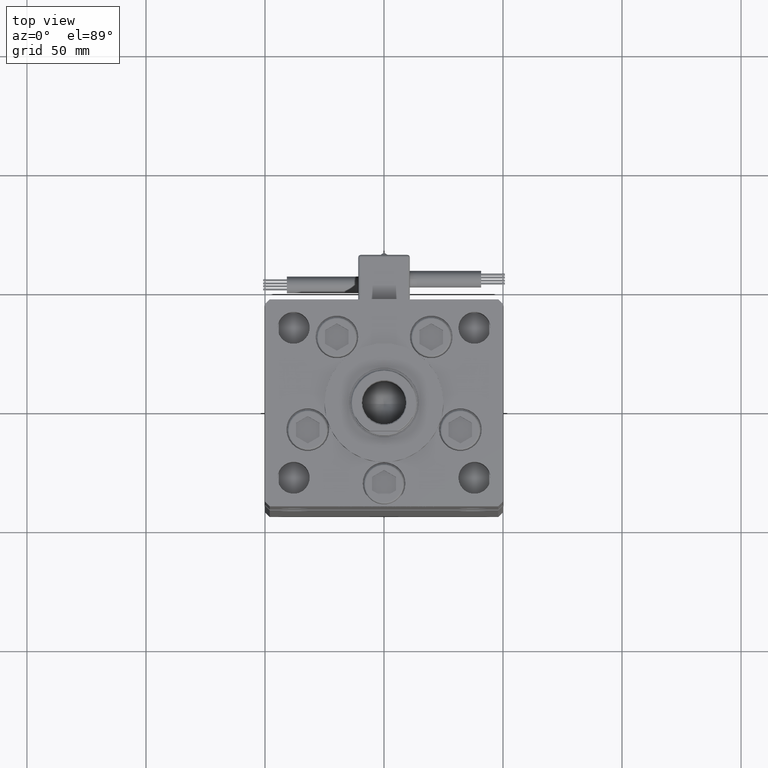
[diagram: clean part render]
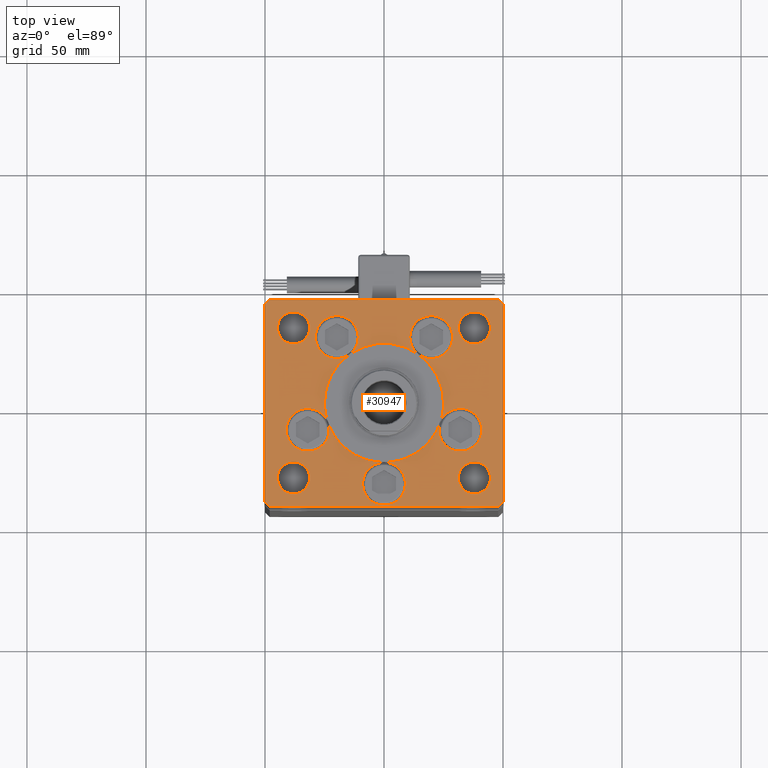
[diagram: same view with one face highlighted and labeled with its STEP entity id]
A machine part, top view. The second image highlights one B-rep face of the part: STEP entity #30947.
In plain terms, the highlighted planar face has unit normal (0, 0, 1).
Its self-contained STEP definition (entity closure, byte-faithful):
#371 = VERTEX_POINT ( 'NONE', #44203 ) ;
#615 = CARTESIAN_POINT ( 'NONE',  ( 23.05550741379015633, -11.33333333333332682, 0.000000000000000000 ) ) ;
#645 = EDGE_CURVE ( 'NONE', #3969, #31298, #35624, .T. ) ;
#651 = EDGE_CURVE ( 'NONE', #31397, #3433, #12047, .T. ) ;
#709 = LINE ( 'NONE', #18044, #14756 ) ;
#761 = VERTEX_POINT ( 'NONE', #12591 ) ;
#779 = DIRECTION ( 'NONE',  ( 1.000000000000000000, 0.000000000000000000, 0.000000000000000000 ) ) ;
#847 = CIRCLE ( 'NONE', #32631, 9.000000000000001776 ) ;
#994 = LINE ( 'NONE', #27676, #44138 ) ;
#1056 = CARTESIAN_POINT ( 'NONE',  ( 19.82068048781374969, 27.62499999999998934, 0.000000000000000000 ) ) ;
#1310 = CARTESIAN_POINT ( 'NONE',  ( 0.000000000000000000, -6.938893903907228378E-15, 0.000000000000000000 ) ) ;
#1465 = EDGE_CURVE ( 'NONE', #27745, #36570, #709, .T. ) ;
#1714 = DIRECTION ( 'NONE',  ( 0.000000000000000000, 0.000000000000000000, 1.000000000000000000 ) ) ;
#1786 = CIRCLE ( 'NONE', #16330, 8.999999999999998224 ) ;
#1943 = EDGE_LOOP ( 'NONE', ( #23618, #24441 ) ) ;
#2090 = ORIENTED_EDGE ( 'NONE', *, *, #32813, .F. ) ;
#2238 = DIRECTION ( 'NONE',  ( -0.7071067811865536790, -0.7071067811865414665, 0.000000000000000000 ) ) ;
#2425 = VERTEX_POINT ( 'NONE', #37733 ) ;
#2787 = CARTESIAN_POINT ( 'NONE',  ( 31.25000000000000000, 31.50000000000000000, 0.000000000000000000 ) ) ;
#2995 = AXIS2_PLACEMENT_3D ( 'NONE', #46728, #38751, #56091 ) ;
#3087 = CARTESIAN_POINT ( 'NONE',  ( 0.000000000000000000, -6.938893903907228378E-15, 0.000000000000000000 ) ) ;
#3433 = VERTEX_POINT ( 'NONE', #22454 ) ;
#3678 = CIRCLE ( 'NONE', #31840, 9.000000000000001776 ) ;
#3969 = VERTEX_POINT ( 'NONE', #14562 ) ;
#4075 = CIRCLE ( 'NONE', #35865, 25.00000000000000000 ) ;
#4206 = ORIENTED_EDGE ( 'NONE', *, *, #22791, .T. ) ;
#4477 = VERTEX_POINT ( 'NONE', #7303 ) ;
#4856 = CIRCLE ( 'NONE', #37539, 25.00000000000000000 ) ;
#4912 = CARTESIAN_POINT ( 'NONE',  ( 0.000000000000000000, -6.938893903907228378E-15, 0.000000000000000000 ) ) ;
#5049 = CARTESIAN_POINT ( 'NONE',  ( -32.05550741379015989, -11.33333333333332860, 0.000000000000000000 ) ) ;
#5074 = CIRCLE ( 'NONE', #36849, 9.000000000000000000 ) ;
#5149 = EDGE_CURVE ( 'NONE', #44443, #45075, #48487, .T. ) ;
#5286 = VERTEX_POINT ( 'NONE', #35778 ) ;
#5344 = CARTESIAN_POINT ( 'NONE',  ( -41.05550741379015989, -11.33333333333332682, 0.000000000000000000 ) ) ;
#5534 = DIRECTION ( 'NONE',  ( 0.000000000000000000, 0.000000000000000000, 1.000000000000000000 ) ) ;
#5781 = CIRCLE ( 'NONE', #37584, 9.000000000000000000 ) ;
#5864 = VERTEX_POINT ( 'NONE', #2787 ) ;
#5867 = DIRECTION ( 'NONE',  ( 8.360113137237620037E-17, -1.000000000000000000, 0.000000000000000000 ) ) ;
#6105 = CARTESIAN_POINT ( 'NONE',  ( -28.82068048781374969, 27.62499999999998934, 0.000000000000000000 ) ) ;
#6610 = ORIENTED_EDGE ( 'NONE', *, *, #7380, .F. ) ;
#6642 = CARTESIAN_POINT ( 'NONE',  ( 50.00000000000000000, -41.49999999999992895, 0.000000000000000000 ) ) ;
#6723 = CARTESIAN_POINT ( 'NONE',  ( 23.57022603955158502, -8.333333333333332149, 0.000000000000000000 ) ) ;
#6850 = DIRECTION ( 'NONE',  ( 0.000000000000000000, 0.000000000000000000, 1.000000000000000000 ) ) ;
#6890 = CARTESIAN_POINT ( 'NONE',  ( -32.05550741379015989, -11.33333333333332860, 0.000000000000000000 ) ) ;
#7279 = CIRCLE ( 'NONE', #10913, 25.00000000000000000 ) ;
#7303 = CARTESIAN_POINT ( 'NONE',  ( 14.57402977045128623, 20.31249999999998579, 0.000000000000000000 ) ) ;
#7380 = EDGE_CURVE ( 'NONE', #25454, #31397, #17548, .T. ) ;
#7423 = DIRECTION ( 'NONE',  ( 1.000000000000000000, 0.000000000000000000, 0.000000000000000000 ) ) ;
#7502 = DIRECTION ( 'NONE',  ( 0.7071067811865487940, -0.7071067811865463515, 0.000000000000000000 ) ) ;
#7625 = DIRECTION ( 'NONE',  ( 0.000000000000000000, 0.000000000000000000, 1.000000000000000000 ) ) ;
#7826 = LINE ( 'NONE', #11820, #20505 ) ;
#8149 = DIRECTION ( 'NONE',  ( 0.000000000000000000, 0.000000000000000000, 1.000000000000000000 ) ) ;
#8372 = DIRECTION ( 'NONE',  ( 1.000000000000000000, 0.000000000000000000, 0.000000000000000000 ) ) ;
#9052 = CIRCLE ( 'NONE', #49038, 8.999999999999998224 ) ;
#9323 = DIRECTION ( 'NONE',  ( 1.000000000000000000, 0.000000000000000000, 0.000000000000000000 ) ) ;
#9351 = FACE_BOUND ( 'NONE', #28870, .T. ) ;
#9603 = CARTESIAN_POINT ( 'NONE',  ( -19.82068048781374969, 27.62499999999998934, 0.000000000000000000 ) ) ;
#9637 = FACE_BOUND ( 'NONE', #53361, .T. ) ;
#9720 = AXIS2_PLACEMENT_3D ( 'NONE', #23103, #14301, #45564 ) ;
#9791 = CARTESIAN_POINT ( 'NONE',  ( 38.00000000000000000, 31.50000000000000000, 0.000000000000000000 ) ) ;
#9814 = ORIENTED_EDGE ( 'NONE', *, *, #44114, .F. ) ;
#10016 = CARTESIAN_POINT ( 'NONE',  ( -44.75000000000000000, 31.50000000000000000, 0.000000000000000000 ) ) ;
#10600 = AXIS2_PLACEMENT_3D ( 'NONE', #50693, #20249, #11720 ) ;
#10913 = AXIS2_PLACEMENT_3D ( 'NONE', #3087, #55124, #50581 ) ;
#10941 = VERTEX_POINT ( 'NONE', #6105 ) ;
#11049 = DIRECTION ( 'NONE',  ( 0.000000000000000000, 0.000000000000000000, 1.000000000000000000 ) ) ;
#11424 = CARTESIAN_POINT ( 'NONE',  ( 47.99999999999999289, 43.50000000000000000, 0.000000000000000000 ) ) ;
#11560 = AXIS2_PLACEMENT_3D ( 'NONE', #6890, #11722, #33059 ) ;
#11720 = DIRECTION ( 'NONE',  ( 1.000000000000000000, 0.000000000000000000, 0.000000000000000000 ) ) ;
#11722 = DIRECTION ( 'NONE',  ( 0.000000000000000000, 0.000000000000000000, 1.000000000000000000 ) ) ;
#11820 = CARTESIAN_POINT ( 'NONE',  ( 50.00000000000000000, 41.50000000000000711, 0.000000000000000000 ) ) ;
#12012 = ORIENTED_EDGE ( 'NONE', *, *, #25991, .T. ) ;
#12047 = CIRCLE ( 'NONE', #2995, 9.000000000000001776 ) ;
#12148 = EDGE_CURVE ( 'NONE', #5286, #25454, #4856, .T. ) ;
#12313 = CARTESIAN_POINT ( 'NONE',  ( 0.000000000000000000, -6.938893903907228378E-15, 0.000000000000000000 ) ) ;
#12591 = CARTESIAN_POINT ( 'NONE',  ( 9.000000000000000000, -34.00000000000000000, 0.000000000000000000 ) ) ;
#12796 = ORIENTED_EDGE ( 'NONE', *, *, #43658, .T. ) ;
#13077 = DIRECTION ( 'NONE',  ( 1.000000000000000000, 0.000000000000000000, 0.000000000000000000 ) ) ;
#13176 = ORIENTED_EDGE ( 'NONE', *, *, #55606, .F. ) ;
#13200 = CARTESIAN_POINT ( 'NONE',  ( 38.00000000000000711, -31.50000000000000711, 0.000000000000000000 ) ) ;
#13220 = EDGE_CURVE ( 'NONE', #5286, #24064, #5781, .T. ) ;
#13280 = EDGE_CURVE ( 'NONE', #25454, #44286, #20318, .T. ) ;
#13496 = AXIS2_PLACEMENT_3D ( 'NONE', #14232, #27849, #49197 ) ;
#13563 = AXIS2_PLACEMENT_3D ( 'NONE', #53137, #47467, #48308 ) ;
#13692 = CARTESIAN_POINT ( 'NONE',  ( -23.05550741379015633, -11.33333333333332860, 0.000000000000000000 ) ) ;
#14232 = CARTESIAN_POINT ( 'NONE',  ( -38.00000000000000000, 31.50000000000000000, 0.000000000000000000 ) ) ;
#14301 = DIRECTION ( 'NONE',  ( -0.000000000000000000, -0.000000000000000000, -1.000000000000000000 ) ) ;
#14435 = DIRECTION ( 'NONE',  ( 1.000000000000000000, 0.000000000000000000, 0.000000000000000000 ) ) ;
#14562 = CARTESIAN_POINT ( 'NONE',  ( -25.00000000000000000, -6.938893903907228378E-15, 0.000000000000000000 ) ) ;
#14685 = EDGE_CURVE ( 'NONE', #45075, #44443, #49456, .T. ) ;
#14756 = VECTOR ( 'NONE', #39950, 1000.000000000000000 ) ;
#15012 = EDGE_CURVE ( 'NONE', #2425, #42720, #33109, .T. ) ;
#15028 = CARTESIAN_POINT ( 'NONE',  ( -48.00000000000000000, 43.49999999999997158, 0.000000000000000000 ) ) ;
#15517 = DIRECTION ( 'NONE',  ( -0.7071067811865512365, 0.7071067811865439090, 0.000000000000000000 ) ) ;
#15873 = CARTESIAN_POINT ( 'NONE',  ( 19.82068048781374969, 27.62499999999998934, 0.000000000000000000 ) ) ;
#15934 = ORIENTED_EDGE ( 'NONE', *, *, #645, .F. ) ;
#16015 = EDGE_LOOP ( 'NONE', ( #12012, #32126, #4206, #42043, #50691, #42598, #16086, #47597 ) ) ;
#16086 = ORIENTED_EDGE ( 'NONE', *, *, #28906, .T. ) ;
#16150 = VERTEX_POINT ( 'NONE', #32858 ) ;
#16193 = DIRECTION ( 'NONE',  ( 0.000000000000000000, 0.000000000000000000, 1.000000000000000000 ) ) ;
#16301 = EDGE_CURVE ( 'NONE', #4477, #2425, #4075, .T. ) ;
#16330 = AXIS2_PLACEMENT_3D ( 'NONE', #15873, #7625, #45737 ) ;
#16501 = DIRECTION ( 'NONE',  ( 1.000000000000000000, 0.000000000000000000, 0.000000000000000000 ) ) ;
#16503 = CARTESIAN_POINT ( 'NONE',  ( -48.00000000000000711, -43.50000000000002842, 0.000000000000000000 ) ) ;
#16633 = DIRECTION ( 'NONE',  ( 0.000000000000000000, 0.000000000000000000, 1.000000000000000000 ) ) ;
#16660 = DIRECTION ( 'NONE',  ( 0.000000000000000000, 0.000000000000000000, 1.000000000000000000 ) ) ;
#16782 = ORIENTED_EDGE ( 'NONE', *, *, #33917, .F. ) ;
#17054 = CARTESIAN_POINT ( 'NONE',  ( 0.000000000000000000, -34.00000000000000000, 0.000000000000000000 ) ) ;
#17119 = EDGE_CURVE ( 'NONE', #10941, #2425, #22295, .T. ) ;
#17543 = ORIENTED_EDGE ( 'NONE', *, *, #16301, .F. ) ;
#17548 = CIRCLE ( 'NONE', #23924, 9.000000000000001776 ) ;
#17866 = ORIENTED_EDGE ( 'NONE', *, *, #47199, .F. ) ;
#18044 = CARTESIAN_POINT ( 'NONE',  ( -48.00000000000000711, -43.50000000000002842, 0.000000000000000000 ) ) ;
#18414 = DIRECTION ( 'NONE',  ( -0.000000000000000000, -0.000000000000000000, -1.000000000000000000 ) ) ;
#19048 = DIRECTION ( 'NONE',  ( 1.000000000000000000, 0.000000000000000000, 0.000000000000000000 ) ) ;
#19053 = EDGE_CURVE ( 'NONE', #22561, #5864, #35977, .T. ) ;
#19195 = DIRECTION ( 'NONE',  ( 0.000000000000000000, 0.000000000000000000, 1.000000000000000000 ) ) ;
#19430 = EDGE_CURVE ( 'NONE', #35521, #35262, #39644, .T. ) ;
#19585 = AXIS2_PLACEMENT_3D ( 'NONE', #13200, #34826, #26551 ) ;
#20014 = CIRCLE ( 'NONE', #46380, 6.749999999999999112 ) ;
#20249 = DIRECTION ( 'NONE',  ( 0.000000000000000000, 0.000000000000000000, 1.000000000000000000 ) ) ;
#20277 = EDGE_CURVE ( 'NONE', #55223, #53952, #31529, .T. ) ;
#20318 = CIRCLE ( 'NONE', #52103, 25.00000000000000000 ) ;
#20335 = ORIENTED_EDGE ( 'NONE', *, *, #13220, .F. ) ;
#20354 = CARTESIAN_POINT ( 'NONE',  ( 50.00000000000000000, -41.49999999999992895, 0.000000000000000000 ) ) ;
#20368 = CARTESIAN_POINT ( 'NONE',  ( -44.75000000000000711, -31.50000000000000711, 0.000000000000000000 ) ) ;
#20375 = EDGE_CURVE ( 'NONE', #42720, #10941, #43289, .T. ) ;
#20505 = VECTOR ( 'NONE', #15517, 999.9999999999998863 ) ;
#20892 = ORIENTED_EDGE ( 'NONE', *, *, #32958, .F. ) ;
#21233 = DIRECTION ( 'NONE',  ( 1.000000000000000000, 0.000000000000000000, 0.000000000000000000 ) ) ;
#21413 = CIRCLE ( 'NONE', #19585, 6.749999999999999112 ) ;
#21587 = CARTESIAN_POINT ( 'NONE',  ( -50.00000000000000711, 41.49999999999999289, 0.000000000000000000 ) ) ;
#21602 = DIRECTION ( 'NONE',  ( 0.000000000000000000, 0.000000000000000000, 1.000000000000000000 ) ) ;
#21828 = DIRECTION ( 'NONE',  ( 0.000000000000000000, 0.000000000000000000, 1.000000000000000000 ) ) ;
#21886 = DIRECTION ( 'NONE',  ( 0.000000000000000000, 0.000000000000000000, 1.000000000000000000 ) ) ;
#21938 = DIRECTION ( 'NONE',  ( 0.000000000000000000, 0.000000000000000000, 1.000000000000000000 ) ) ;
#22180 = DIRECTION ( 'NONE',  ( 0.000000000000000000, 0.000000000000000000, 1.000000000000000000 ) ) ;
#22295 = CIRCLE ( 'NONE', #44986, 9.000000000000000000 ) ;
#22454 = CARTESIAN_POINT ( 'NONE',  ( 41.05550741379015989, -11.33333333333332860, 0.000000000000000000 ) ) ;
#22561 = VERTEX_POINT ( 'NONE', #24637 ) ;
#22645 = VERTEX_POINT ( 'NONE', #42545 ) ;
#22791 = EDGE_CURVE ( 'NONE', #36570, #29593, #994, .T. ) ;
#23036 = EDGE_CURVE ( 'NONE', #44286, #4477, #53228, .T. ) ;
#23103 = CARTESIAN_POINT ( 'NONE',  ( 38.00000000000000711, -31.50000000000000711, 0.000000000000000000 ) ) ;
#23235 = CARTESIAN_POINT ( 'NONE',  ( 19.82068048781374969, 27.62499999999998934, 0.000000000000000000 ) ) ;
#23255 = CARTESIAN_POINT ( 'NONE',  ( 25.00000000000000000, -3.877276906038844941E-15, 0.000000000000000000 ) ) ;
#23618 = ORIENTED_EDGE ( 'NONE', *, *, #5149, .F. ) ;
#23924 = AXIS2_PLACEMENT_3D ( 'NONE', #43634, #16633, #8372 ) ;
#24064 = VERTEX_POINT ( 'NONE', #46122 ) ;
#24441 = ORIENTED_EDGE ( 'NONE', *, *, #14685, .F. ) ;
#24637 = CARTESIAN_POINT ( 'NONE',  ( 44.75000000000000000, 31.50000000000000000, 0.000000000000000000 ) ) ;
#25036 = DIRECTION ( 'NONE',  ( 1.000000000000000000, 0.000000000000000000, 0.000000000000000000 ) ) ;
#25359 = ORIENTED_EDGE ( 'NONE', *, *, #37171, .F. ) ;
#25454 = VERTEX_POINT ( 'NONE', #6723 ) ;
#25562 = DIRECTION ( 'NONE',  ( 1.000000000000000000, 0.000000000000000000, 0.000000000000000000 ) ) ;
#25928 = CIRCLE ( 'NONE', #41353, 25.00000000000000000 ) ;
#25991 = EDGE_CURVE ( 'NONE', #22645, #27745, #29123, .T. ) ;
#26082 = DIRECTION ( 'NONE',  ( 1.000000000000000000, 0.000000000000000000, 0.000000000000000000 ) ) ;
#26189 = EDGE_LOOP ( 'NONE', ( #41884, #32097 ) ) ;
#26199 = VERTEX_POINT ( 'NONE', #5344 ) ;
#26551 = DIRECTION ( 'NONE',  ( -1.000000000000000000, 0.000000000000000000, 0.000000000000000000 ) ) ;
#26651 = ORIENTED_EDGE ( 'NONE', *, *, #52915, .F. ) ;
#26753 = AXIS2_PLACEMENT_3D ( 'NONE', #50837, #55095, #30052 ) ;
#27676 = CARTESIAN_POINT ( 'NONE',  ( 48.00000000000000711, -43.49999999999992184, 0.000000000000000000 ) ) ;
#27745 = VERTEX_POINT ( 'NONE', #16503 ) ;
#27849 = DIRECTION ( 'NONE',  ( -0.000000000000000000, -0.000000000000000000, -1.000000000000000000 ) ) ;
#28003 = AXIS2_PLACEMENT_3D ( 'NONE', #53989, #11049, #44132 ) ;
#28655 = AXIS2_PLACEMENT_3D ( 'NONE', #54626, #6850, #7423 ) ;
#28717 = DIRECTION ( 'NONE',  ( 0.000000000000000000, 0.000000000000000000, 1.000000000000000000 ) ) ;
#28870 = EDGE_LOOP ( 'NONE', ( #30644, #41768 ) ) ;
#28906 = EDGE_CURVE ( 'NONE', #55194, #53508, #43570, .T. ) ;
#28958 = EDGE_CURVE ( 'NONE', #761, #5286, #38907, .T. ) ;
#29123 = LINE ( 'NONE', #46465, #54279 ) ;
#29177 = DIRECTION ( 'NONE',  ( 0.000000000000000000, 1.000000000000000000, 0.000000000000000000 ) ) ;
#29593 = VERTEX_POINT ( 'NONE', #6642 ) ;
#29714 = CIRCLE ( 'NONE', #11560, 9.000000000000001776 ) ;
#30052 = DIRECTION ( 'NONE',  ( 1.000000000000000000, 0.000000000000000000, 0.000000000000000000 ) ) ;
#30466 = CARTESIAN_POINT ( 'NONE',  ( 0.000000000000000000, -6.938893903907228378E-15, 0.000000000000000000 ) ) ;
#30644 = ORIENTED_EDGE ( 'NONE', *, *, #19053, .F. ) ;
#30817 = ORIENTED_EDGE ( 'NONE', *, *, #12148, .F. ) ;
#30840 = ORIENTED_EDGE ( 'NONE', *, *, #23036, .F. ) ;
#30947 = ADVANCED_FACE ( 'NONE', ( #9637, #35800, #9351, #48589, #39221, #34957 ), #48025, .T. ) ;
#31298 = VERTEX_POINT ( 'NONE', #39013 ) ;
#31319 = ORIENTED_EDGE ( 'NONE', *, *, #651, .F. ) ;
#31397 = VERTEX_POINT ( 'NONE', #615 ) ;
#31414 = CIRCLE ( 'NONE', #28655, 9.000000000000001776 ) ;
#31446 = VERTEX_POINT ( 'NONE', #13692 ) ;
#31529 = CIRCLE ( 'NONE', #9720, 6.749999999999999112 ) ;
#31689 = CIRCLE ( 'NONE', #13496, 6.749999999999999112 ) ;
#31691 = DIRECTION ( 'NONE',  ( 0.7071067811865474617, 0.7071067811865474617, 0.000000000000000000 ) ) ;
#31745 = DIRECTION ( 'NONE',  ( 1.000000000000000000, 0.000000000000000000, 0.000000000000000000 ) ) ;
#31840 = AXIS2_PLACEMENT_3D ( 'NONE', #5049, #34638, #779 ) ;
#31911 = DIRECTION ( 'NONE',  ( 1.000000000000000000, 0.000000000000000000, 0.000000000000000000 ) ) ;
#32097 = ORIENTED_EDGE ( 'NONE', *, *, #19430, .T. ) ;
#32126 = ORIENTED_EDGE ( 'NONE', *, *, #1465, .T. ) ;
#32631 = AXIS2_PLACEMENT_3D ( 'NONE', #47112, #8149, #21233 ) ;
#32813 = EDGE_CURVE ( 'NONE', #16150, #53699, #9052, .T. ) ;
#32858 = CARTESIAN_POINT ( 'NONE',  ( 28.82068048781374969, 27.62499999999998934, 0.000000000000000000 ) ) ;
#32958 = EDGE_CURVE ( 'NONE', #4477, #16150, #1786, .T. ) ;
#33059 = DIRECTION ( 'NONE',  ( 1.000000000000000000, 0.000000000000000000, 0.000000000000000000 ) ) ;
#33103 = CARTESIAN_POINT ( 'NONE',  ( -31.25000000000000000, 31.50000000000000000, 0.000000000000000000 ) ) ;
#33109 = CIRCLE ( 'NONE', #26753, 9.000000000000000000 ) ;
#33136 = EDGE_CURVE ( 'NONE', #53508, #22645, #35474, .T. ) ;
#33917 = EDGE_CURVE ( 'NONE', #31446, #31298, #3678, .T. ) ;
#33977 = AXIS2_PLACEMENT_3D ( 'NONE', #37818, #16193, #25562 ) ;
#34277 = EDGE_CURVE ( 'NONE', #5864, #22561, #20014, .T. ) ;
#34412 = CARTESIAN_POINT ( 'NONE',  ( 0.000000000000000000, -6.938893903907228378E-15, 0.000000000000000000 ) ) ;
#34609 = CARTESIAN_POINT ( 'NONE',  ( 44.75000000000000711, -31.50000000000000711, 0.000000000000000000 ) ) ;
#34638 = DIRECTION ( 'NONE',  ( 0.000000000000000000, 0.000000000000000000, 1.000000000000000000 ) ) ;
#34709 = CARTESIAN_POINT ( 'NONE',  ( 0.000000000000000000, -34.00000000000000000, 0.000000000000000000 ) ) ;
#34826 = DIRECTION ( 'NONE',  ( -0.000000000000000000, -0.000000000000000000, -1.000000000000000000 ) ) ;
#34846 = CARTESIAN_POINT ( 'NONE',  ( -48.00000000000000000, 43.49999999999997158, 0.000000000000000000 ) ) ;
#34934 = CARTESIAN_POINT ( 'NONE',  ( -38.00000000000000000, 31.50000000000000000, 0.000000000000000000 ) ) ;
#34957 = FACE_BOUND ( 'NONE', #41626, .T. ) ;
#35019 = DIRECTION ( 'NONE',  ( 1.000000000000000000, 0.000000000000000000, 0.000000000000000000 ) ) ;
#35262 = VERTEX_POINT ( 'NONE', #33103 ) ;
#35474 = LINE ( 'NONE', #52809, #47219 ) ;
#35521 = VERTEX_POINT ( 'NONE', #10016 ) ;
#35624 = CIRCLE ( 'NONE', #42899, 25.00000000000000000 ) ;
#35778 = CARTESIAN_POINT ( 'NONE',  ( 0.000000000000000000, -25.00000000000000000, 0.000000000000000000 ) ) ;
#35800 = FACE_BOUND ( 'NONE', #26189, .T. ) ;
#35865 = AXIS2_PLACEMENT_3D ( 'NONE', #47846, #16660, #51373 ) ;
#35977 = CIRCLE ( 'NONE', #52343, 6.749999999999999112 ) ;
#36356 = CIRCLE ( 'NONE', #45413, 8.999999999999998224 ) ;
#36570 = VERTEX_POINT ( 'NONE', #40210 ) ;
#36751 = AXIS2_PLACEMENT_3D ( 'NONE', #50620, #28717, #46344 ) ;
#36835 = ORIENTED_EDGE ( 'NONE', *, *, #13280, .F. ) ;
#36849 = AXIS2_PLACEMENT_3D ( 'NONE', #34709, #22180, #13077 ) ;
#36886 = DIRECTION ( 'NONE',  ( 0.000000000000000000, 0.000000000000000000, 1.000000000000000000 ) ) ;
#37146 = ORIENTED_EDGE ( 'NONE', *, *, #20277, .T. ) ;
#37171 = EDGE_CURVE ( 'NONE', #2425, #3969, #7279, .T. ) ;
#37539 = AXIS2_PLACEMENT_3D ( 'NONE', #30466, #21938, #35019 ) ;
#37584 = AXIS2_PLACEMENT_3D ( 'NONE', #17054, #21886, #16501 ) ;
#37733 = CARTESIAN_POINT ( 'NONE',  ( -14.57402977045128978, 20.31249999999999289, 0.000000000000000000 ) ) ;
#37818 = CARTESIAN_POINT ( 'NONE',  ( -38.00000000000000711, -31.50000000000000711, 0.000000000000000000 ) ) ;
#37826 = AXIS2_PLACEMENT_3D ( 'NONE', #4912, #52679, #31911 ) ;
#38751 = DIRECTION ( 'NONE',  ( 0.000000000000000000, 0.000000000000000000, 1.000000000000000000 ) ) ;
#38907 = CIRCLE ( 'NONE', #28003, 9.000000000000000000 ) ;
#39013 = CARTESIAN_POINT ( 'NONE',  ( -23.57022603955158502, -8.333333333333332149, 0.000000000000000000 ) ) ;
#39221 = FACE_OUTER_BOUND ( 'NONE', #16015, .T. ) ;
#39585 = VECTOR ( 'NONE', #29177, 1000.000000000000000 ) ;
#39644 = CIRCLE ( 'NONE', #53236, 6.749999999999999112 ) ;
#39745 = EDGE_CURVE ( 'NONE', #31298, #5286, #25928, .T. ) ;
#39854 = VECTOR ( 'NONE', #42152, 1000.000000000000000 ) ;
#39877 = CARTESIAN_POINT ( 'NONE',  ( -31.25000000000000711, -31.50000000000000711, 0.000000000000000000 ) ) ;
#39950 = DIRECTION ( 'NONE',  ( 1.000000000000000000, 1.156482317317871331E-15, 0.000000000000000000 ) ) ;
#40210 = CARTESIAN_POINT ( 'NONE',  ( 48.00000000000000711, -43.49999999999992184, 0.000000000000000000 ) ) ;
#40225 = DIRECTION ( 'NONE',  ( 1.000000000000000000, 0.000000000000000000, 0.000000000000000000 ) ) ;
#40675 = CARTESIAN_POINT ( 'NONE',  ( 38.00000000000000000, 31.50000000000000000, 0.000000000000000000 ) ) ;
#40819 = EDGE_CURVE ( 'NONE', #29593, #371, #42536, .T. ) ;
#41353 = AXIS2_PLACEMENT_3D ( 'NONE', #1310, #19195, #31745 ) ;
#41626 = EDGE_LOOP ( 'NONE', ( #12796, #37146 ) ) ;
#41768 = ORIENTED_EDGE ( 'NONE', *, *, #34277, .F. ) ;
#41884 = ORIENTED_EDGE ( 'NONE', *, *, #52332, .T. ) ;
#42043 = ORIENTED_EDGE ( 'NONE', *, *, #40819, .T. ) ;
#42152 = DIRECTION ( 'NONE',  ( -1.000000000000000000, -2.891205793294678326E-16, 0.000000000000000000 ) ) ;
#42536 = LINE ( 'NONE', #20354, #39585 ) ;
#42545 = CARTESIAN_POINT ( 'NONE',  ( -50.00000000000000000, -41.50000000000004263, 0.000000000000000000 ) ) ;
#42598 = ORIENTED_EDGE ( 'NONE', *, *, #52161, .T. ) ;
#42720 = VERTEX_POINT ( 'NONE', #43068 ) ;
#42899 = AXIS2_PLACEMENT_3D ( 'NONE', #12313, #51835, #46453 ) ;
#43068 = CARTESIAN_POINT ( 'NONE',  ( -10.82068048781375147, 27.62499999999998934, 0.000000000000000000 ) ) ;
#43289 = CIRCLE ( 'NONE', #10600, 9.000000000000000000 ) ;
#43465 = DIRECTION ( 'NONE',  ( -1.000000000000000000, 0.000000000000000000, 0.000000000000000000 ) ) ;
#43526 = EDGE_CURVE ( 'NONE', #371, #44858, #7826, .T. ) ;
#43570 = LINE ( 'NONE', #15028, #48925 ) ;
#43634 = CARTESIAN_POINT ( 'NONE',  ( 32.05550741379015989, -11.33333333333332860, 0.000000000000000000 ) ) ;
#43658 = EDGE_CURVE ( 'NONE', #53952, #55223, #21413, .T. ) ;
#44114 = EDGE_CURVE ( 'NONE', #3433, #25454, #31414, .T. ) ;
#44132 = DIRECTION ( 'NONE',  ( 1.000000000000000000, 0.000000000000000000, 0.000000000000000000 ) ) ;
#44138 = VECTOR ( 'NONE', #31691, 1000.000000000000114 ) ;
#44203 = CARTESIAN_POINT ( 'NONE',  ( 50.00000000000000000, 41.50000000000000711, 0.000000000000000000 ) ) ;
#44286 = VERTEX_POINT ( 'NONE', #23255 ) ;
#44443 = VERTEX_POINT ( 'NONE', #39877 ) ;
#44591 = ORIENTED_EDGE ( 'NONE', *, *, #39745, .F. ) ;
#44723 = EDGE_CURVE ( 'NONE', #24064, #761, #5074, .T. ) ;
#44858 = VERTEX_POINT ( 'NONE', #45477 ) ;
#44986 = AXIS2_PLACEMENT_3D ( 'NONE', #9603, #48278, #9323 ) ;
#45075 = VERTEX_POINT ( 'NONE', #20368 ) ;
#45158 = CARTESIAN_POINT ( 'NONE',  ( 10.82068048781375147, 27.62499999999998934, 0.000000000000000000 ) ) ;
#45413 = AXIS2_PLACEMENT_3D ( 'NONE', #23235, #36886, #14435 ) ;
#45477 = CARTESIAN_POINT ( 'NONE',  ( 47.99999999999999289, 43.50000000000000000, 0.000000000000000000 ) ) ;
#45564 = DIRECTION ( 'NONE',  ( -1.000000000000000000, 0.000000000000000000, 0.000000000000000000 ) ) ;
#45737 = DIRECTION ( 'NONE',  ( 1.000000000000000000, 0.000000000000000000, 0.000000000000000000 ) ) ;
#46122 = CARTESIAN_POINT ( 'NONE',  ( -9.000000000000000000, -34.00000000000000000, 0.000000000000000000 ) ) ;
#46344 = DIRECTION ( 'NONE',  ( 1.000000000000000000, 0.000000000000000000, 0.000000000000000000 ) ) ;
#46380 = AXIS2_PLACEMENT_3D ( 'NONE', #9791, #5534, #40225 ) ;
#46453 = DIRECTION ( 'NONE',  ( 1.000000000000000000, 0.000000000000000000, 0.000000000000000000 ) ) ;
#46465 = CARTESIAN_POINT ( 'NONE',  ( -50.00000000000000000, -41.50000000000004263, 0.000000000000000000 ) ) ;
#46728 = CARTESIAN_POINT ( 'NONE',  ( 32.05550741379015989, -11.33333333333332860, 0.000000000000000000 ) ) ;
#47112 = CARTESIAN_POINT ( 'NONE',  ( -32.05550741379015989, -11.33333333333332860, 0.000000000000000000 ) ) ;
#47199 = EDGE_CURVE ( 'NONE', #31298, #26199, #29714, .T. ) ;
#47219 = VECTOR ( 'NONE', #5867, 1000.000000000000000 ) ;
#47467 = DIRECTION ( 'NONE',  ( -0.000000000000000000, 0.000000000000000000, 1.000000000000000000 ) ) ;
#47597 = ORIENTED_EDGE ( 'NONE', *, *, #33136, .T. ) ;
#47846 = CARTESIAN_POINT ( 'NONE',  ( 0.000000000000000000, -6.938893903907228378E-15, 0.000000000000000000 ) ) ;
#47859 = ORIENTED_EDGE ( 'NONE', *, *, #17119, .F. ) ;
#48025 = PLANE ( 'NONE',  #13563 ) ;
#48278 = DIRECTION ( 'NONE',  ( 0.000000000000000000, 0.000000000000000000, 1.000000000000000000 ) ) ;
#48308 = DIRECTION ( 'NONE',  ( 1.000000000000000000, 0.000000000000000000, 0.000000000000000000 ) ) ;
#48487 = CIRCLE ( 'NONE', #33977, 6.749999999999999112 ) ;
#48589 = FACE_BOUND ( 'NONE', #1943, .T. ) ;
#48925 = VECTOR ( 'NONE', #2238, 1000.000000000000000 ) ;
#49038 = AXIS2_PLACEMENT_3D ( 'NONE', #1056, #21828, #26082 ) ;
#49197 = DIRECTION ( 'NONE',  ( -1.000000000000000000, 0.000000000000000000, 0.000000000000000000 ) ) ;
#49456 = CIRCLE ( 'NONE', #36751, 6.749999999999999112 ) ;
#50581 = DIRECTION ( 'NONE',  ( 1.000000000000000000, 0.000000000000000000, 0.000000000000000000 ) ) ;
#50620 = CARTESIAN_POINT ( 'NONE',  ( -38.00000000000000711, -31.50000000000000711, 0.000000000000000000 ) ) ;
#50691 = ORIENTED_EDGE ( 'NONE', *, *, #43526, .T. ) ;
#50693 = CARTESIAN_POINT ( 'NONE',  ( -19.82068048781374969, 27.62499999999998934, 0.000000000000000000 ) ) ;
#50837 = CARTESIAN_POINT ( 'NONE',  ( -19.82068048781374969, 27.62499999999998934, 0.000000000000000000 ) ) ;
#50841 = ORIENTED_EDGE ( 'NONE', *, *, #28958, .F. ) ;
#51373 = DIRECTION ( 'NONE',  ( 1.000000000000000000, 0.000000000000000000, 0.000000000000000000 ) ) ;
#51755 = ORIENTED_EDGE ( 'NONE', *, *, #15012, .F. ) ;
#51835 = DIRECTION ( 'NONE',  ( 0.000000000000000000, 0.000000000000000000, 1.000000000000000000 ) ) ;
#52103 = AXIS2_PLACEMENT_3D ( 'NONE', #34412, #21602, #25036 ) ;
#52147 = ORIENTED_EDGE ( 'NONE', *, *, #20375, .F. ) ;
#52161 = EDGE_CURVE ( 'NONE', #44858, #55194, #55506, .T. ) ;
#52332 = EDGE_CURVE ( 'NONE', #35262, #35521, #31689, .T. ) ;
#52343 = AXIS2_PLACEMENT_3D ( 'NONE', #40675, #1714, #19048 ) ;
#52679 = DIRECTION ( 'NONE',  ( 0.000000000000000000, 0.000000000000000000, 1.000000000000000000 ) ) ;
#52809 = CARTESIAN_POINT ( 'NONE',  ( -50.00000000000000711, 41.49999999999999289, 0.000000000000000000 ) ) ;
#52915 = EDGE_CURVE ( 'NONE', #26199, #31446, #847, .T. ) ;
#53137 = CARTESIAN_POINT ( 'NONE',  ( 0.000000000000000000, 0.000000000000000000, 0.000000000000000000 ) ) ;
#53228 = CIRCLE ( 'NONE', #37826, 25.00000000000000000 ) ;
#53236 = AXIS2_PLACEMENT_3D ( 'NONE', #34934, #18414, #43465 ) ;
#53361 = EDGE_LOOP ( 'NONE', ( #17543, #13176, #2090, #20892, #30840, #36835, #9814, #31319, #6610, #30817, #50841, #53370, #20335, #44591, #16782, #26651, #17866, #15934, #25359, #47859, #52147, #51755 ) ) ;
#53370 = ORIENTED_EDGE ( 'NONE', *, *, #44723, .F. ) ;
#53508 = VERTEX_POINT ( 'NONE', #21587 ) ;
#53699 = VERTEX_POINT ( 'NONE', #45158 ) ;
#53952 = VERTEX_POINT ( 'NONE', #34609 ) ;
#53989 = CARTESIAN_POINT ( 'NONE',  ( 0.000000000000000000, -34.00000000000000000, 0.000000000000000000 ) ) ;
#54279 = VECTOR ( 'NONE', #7502, 1000.000000000000000 ) ;
#54626 = CARTESIAN_POINT ( 'NONE',  ( 32.05550741379015989, -11.33333333333332860, 0.000000000000000000 ) ) ;
#55095 = DIRECTION ( 'NONE',  ( 0.000000000000000000, 0.000000000000000000, 1.000000000000000000 ) ) ;
#55124 = DIRECTION ( 'NONE',  ( 0.000000000000000000, 0.000000000000000000, 1.000000000000000000 ) ) ;
#55194 = VERTEX_POINT ( 'NONE', #34846 ) ;
#55223 = VERTEX_POINT ( 'NONE', #55900 ) ;
#55506 = LINE ( 'NONE', #11424, #39854 ) ;
#55606 = EDGE_CURVE ( 'NONE', #53699, #4477, #36356, .T. ) ;
#55900 = CARTESIAN_POINT ( 'NONE',  ( 31.25000000000000711, -31.50000000000000711, 0.000000000000000000 ) ) ;
#56091 = DIRECTION ( 'NONE',  ( 1.000000000000000000, 0.000000000000000000, 0.000000000000000000 ) ) ;